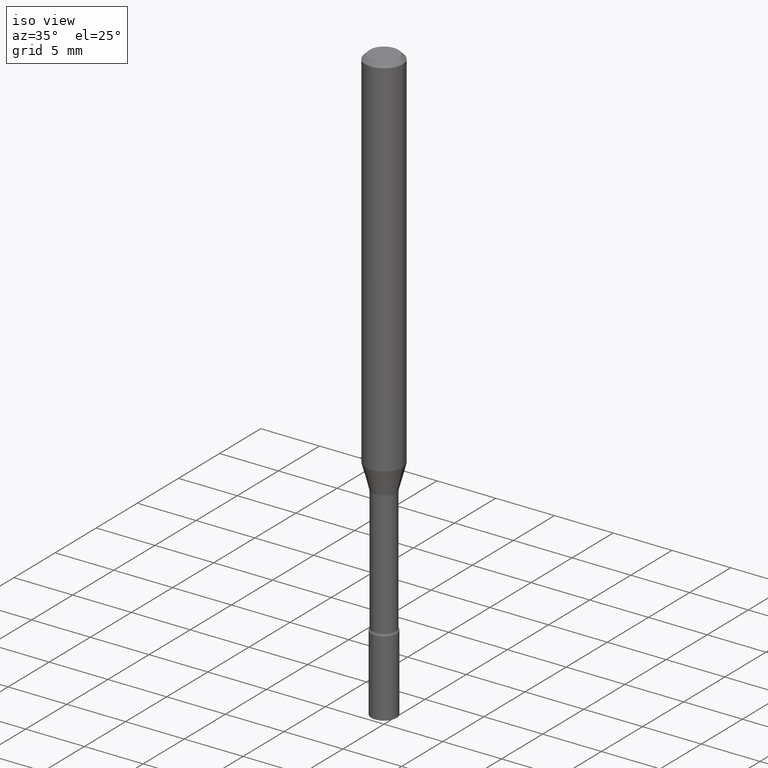
[diagram: clean part render]
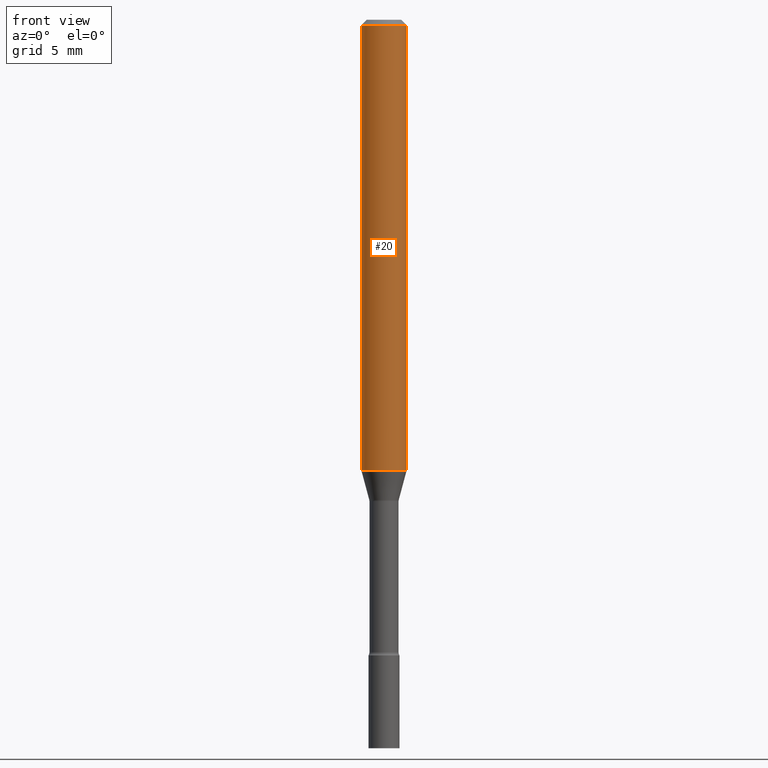
[diagram: tour spotlight — one face highlighted and labeled with its STEP entity id]
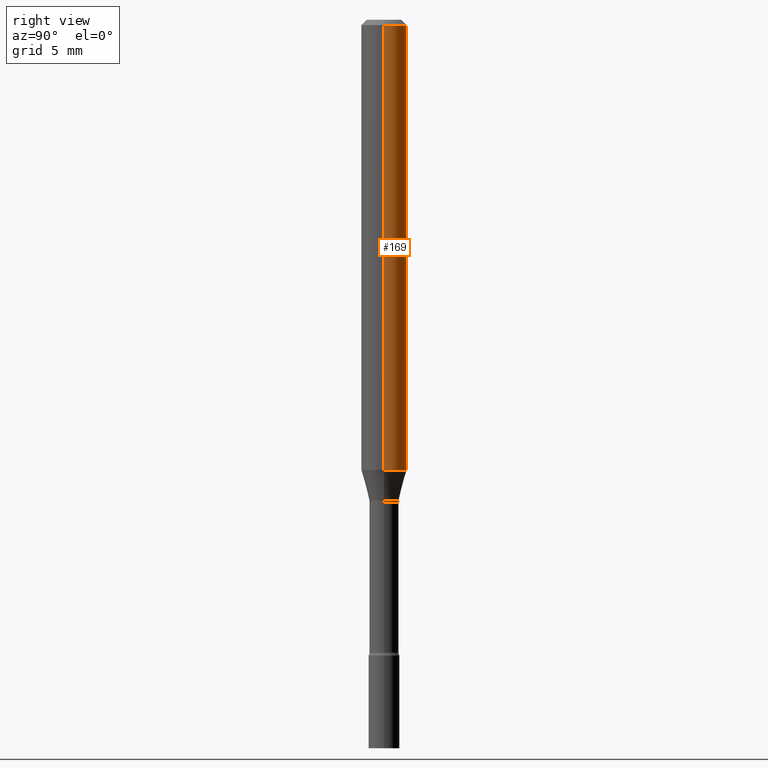
[diagram: tour spotlight — one face highlighted and labeled with its STEP entity id]
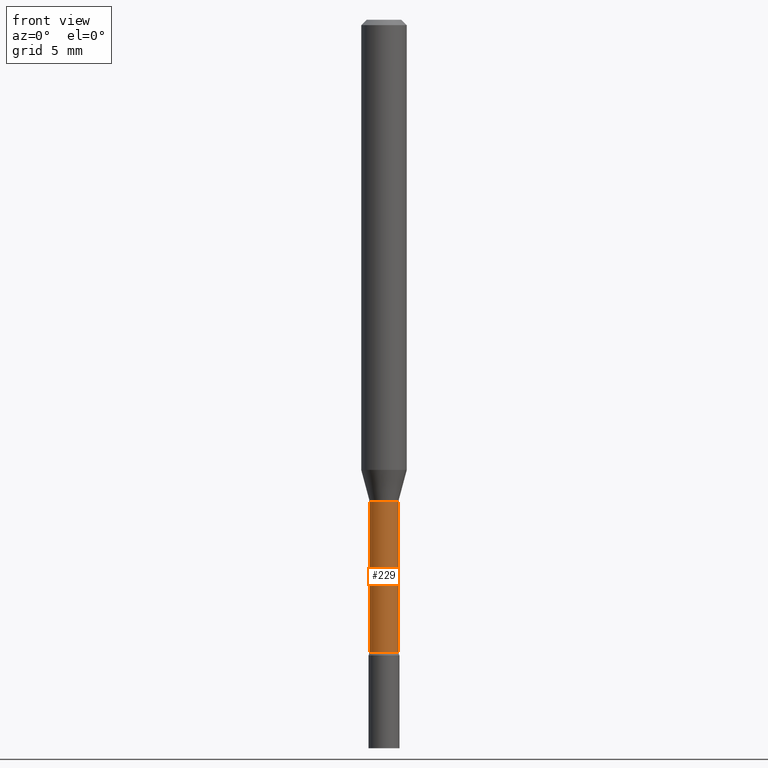
[diagram: tour spotlight — one face highlighted and labeled with its STEP entity id]
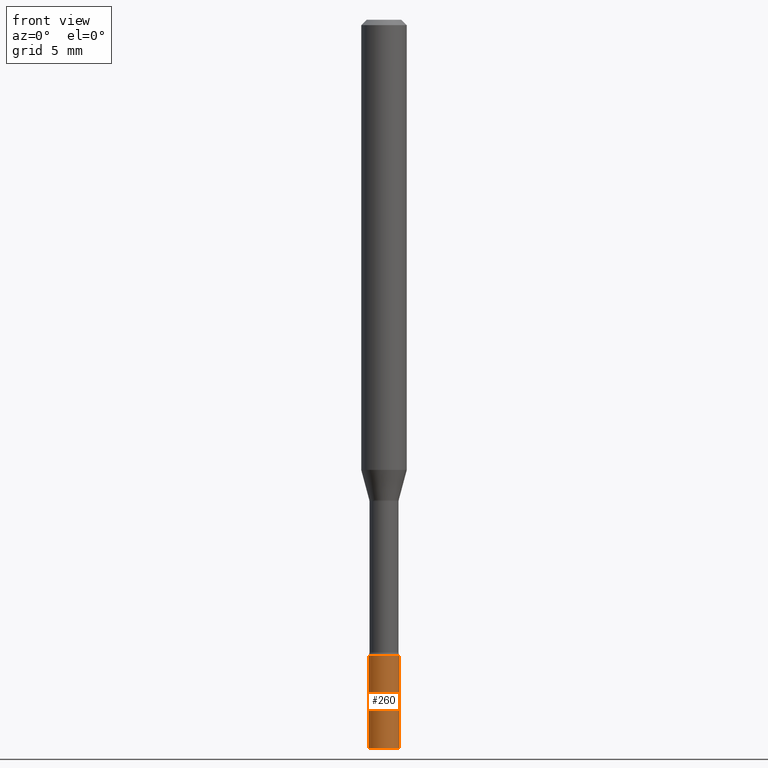
[diagram: tour spotlight — one face highlighted and labeled with its STEP entity id]
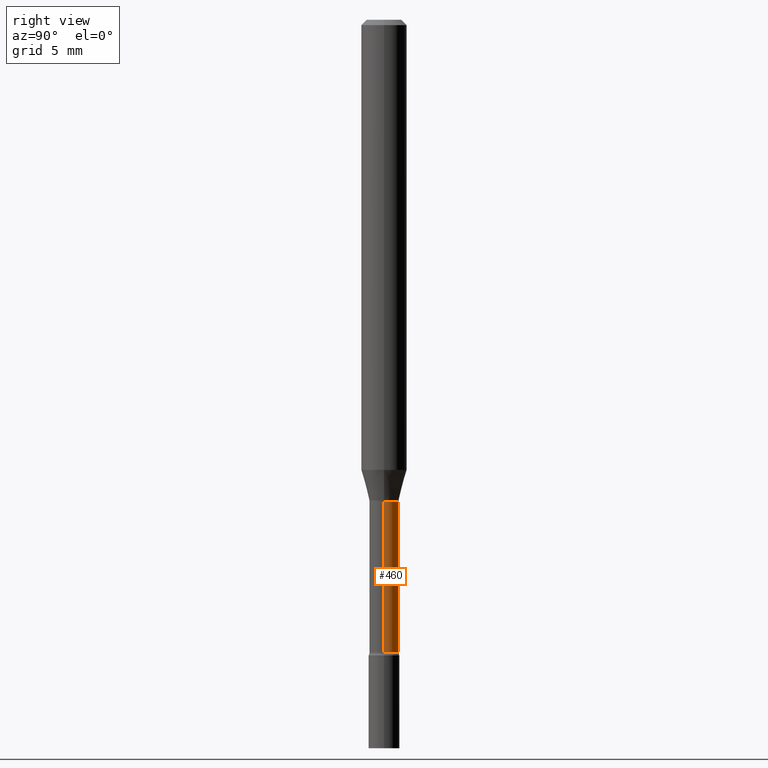
[diagram: tour spotlight — one face highlighted and labeled with its STEP entity id]
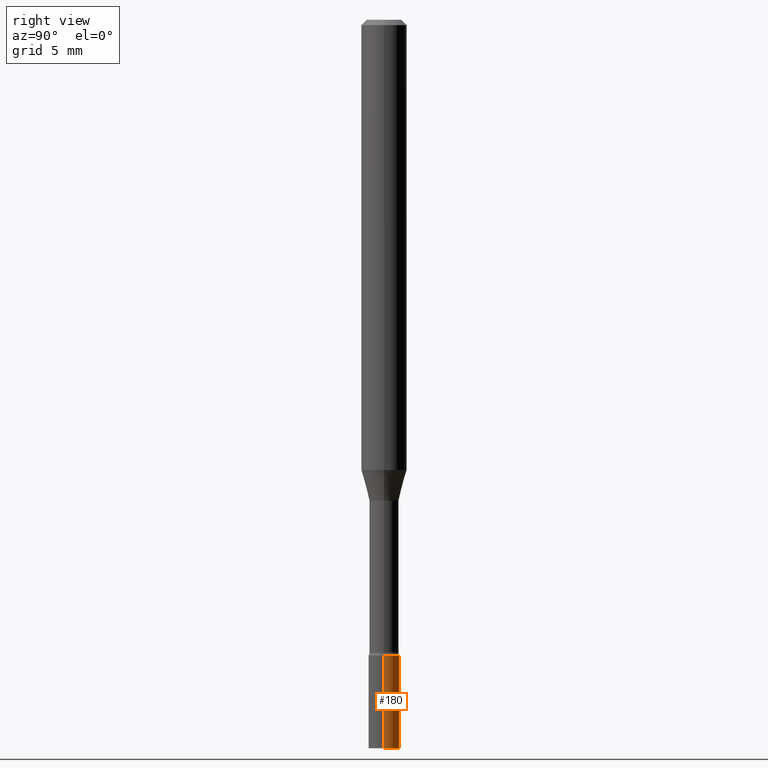
[diagram: tour spotlight — one face highlighted and labeled with its STEP entity id]
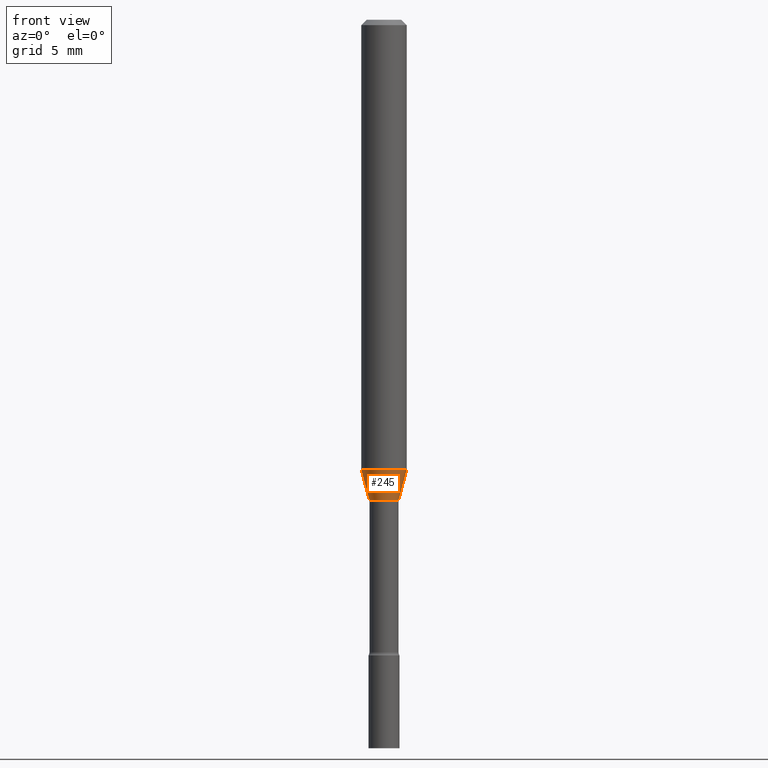
[diagram: tour spotlight — one face highlighted and labeled with its STEP entity id]
A machine part: a face-by-face anatomy tour. The part has 18 B-rep faces; the first image is the clean iso view, then the 7 largest visible faces are spotlighted one at a time (largest first), each with its STEP entity span.

Face 1 — front view, entity #20. In plain terms, the highlighted cylindrical surface (edge-blend (fillet) strip) has radius 1.5875 mm, axis along (-0, 0, 1).
Definition (entity closure, byte-faithful):
#20 = ADVANCED_FACE ( 'NONE', ( #404 ), #41, .T. ) ;
#21 = AXIS2_PLACEMENT_3D ( 'NONE', #233, #235, #105 ) ;
#24 = VERTEX_POINT ( 'NONE', #42 ) ;
#25 = CARTESIAN_POINT ( 'NONE',  ( -0.06250000000000000000, -3.870830958754951536E-15, -1.235842254289322151 ) ) ;
#37 = EDGE_CURVE ( 'NONE', #355, #64, #127, .T. ) ;
#41 = CYLINDRICAL_SURFACE ( 'NONE', #495, 0.06250000000000000000 ) ;
#42 = CARTESIAN_POINT ( 'NONE',  ( 0.06250000000000000000, -4.888073874380389458E-16, -0.01500000000000003067 ) ) ;
#48 = DIRECTION ( 'NONE',  ( -2.445468806185136877E-29, 3.491481338843145188E-15, 1.000000000000000000 ) ) ;
#64 = VERTEX_POINT ( 'NONE', #412 ) ;
#78 = EDGE_CURVE ( 'NONE', #64, #24, #222, .T. ) ;
#105 = DIRECTION ( 'NONE',  ( 1.000000000000000000, -6.982962677686266711E-15, 0.000000000000000000 ) ) ;
#127 = CIRCLE ( 'NONE', #425, 0.06250000000000000000 ) ;
#134 = DIRECTION ( 'NONE',  ( 1.000000000000000000, -6.982962677686270655E-15, 0.000000000000000000 ) ) ;
#142 = CARTESIAN_POINT ( 'NONE',  ( -0.06250000000000000000, 4.440892098500626162E-16, -3.074334431409316114E-30 ) ) ;
#146 = VECTOR ( 'NONE', #48, 39.37007874015748143 ) ;
#170 = ORIENTED_EDGE ( 'NONE', *, *, #78, .T. ) ;
#179 = EDGE_CURVE ( 'NONE', #355, #314, #220, .T. ) ;
#192 = EDGE_LOOP ( 'NONE', ( #424, #402, #170, #206 ) ) ;
#206 = ORIENTED_EDGE ( 'NONE', *, *, #267, .F. ) ;
#217 = CARTESIAN_POINT ( 'NONE',  ( 0.06250000000000000000, -4.364351673553916694E-16, 3.047610484872459871E-30 ) ) ;
#220 = LINE ( 'NONE', #142, #332 ) ;
#222 = LINE ( 'NONE', #217, #146 ) ;
#233 = CARTESIAN_POINT ( 'NONE',  ( 3.668203209277712094E-31, -5.237222008264728876E-17, -0.01500000000000003067 ) ) ;
#235 = DIRECTION ( 'NONE',  ( -2.445468806185136597E-29, 3.491481338843145583E-15, 1.000000000000000000 ) ) ;
#267 = EDGE_CURVE ( 'NONE', #314, #24, #346, .T. ) ;
#314 = VERTEX_POINT ( 'NONE', #385 ) ;
#332 = VECTOR ( 'NONE', #486, 39.37007874015748143 ) ;
#346 = CIRCLE ( 'NONE', #21, 0.06250000000000000000 ) ;
#355 = VERTEX_POINT ( 'NONE', #25 ) ;
#366 = DIRECTION ( 'NONE',  ( -2.445468806185136597E-29, 3.491481338843145583E-15, 1.000000000000000000 ) ) ;
#385 = CARTESIAN_POINT ( 'NONE',  ( -0.06250000000000000000, -1.739556984493767999E-15, -0.01500000000000003067 ) ) ;
#402 = ORIENTED_EDGE ( 'NONE', *, *, #37, .T. ) ;
#404 = FACE_OUTER_BOUND ( 'NONE', #192, .T. ) ;
#408 = DIRECTION ( 'NONE',  ( 1.000000000000000000, -6.982962677686266711E-15, 4.876176775795935793E-29 ) ) ;
#412 = CARTESIAN_POINT ( 'NONE',  ( 0.06250000000000000000, -4.751355335960405821E-15, -1.235842254289322151 ) ) ;
#424 = ORIENTED_EDGE ( 'NONE', *, *, #179, .F. ) ;
#425 = AXIS2_PLACEMENT_3D ( 'NONE', #484, #491, #134 ) ;
#431 = CARTESIAN_POINT ( 'NONE',  ( 0.000000000000000000, 0.000000000000000000, 0.000000000000000000 ) ) ;
#484 = CARTESIAN_POINT ( 'NONE',  ( 3.022213682230056525E-29, -4.314920168605014152E-15, -1.235842254289322151 ) ) ;
#486 = DIRECTION ( 'NONE',  ( -2.445468806185136877E-29, 3.491481338843145188E-15, 1.000000000000000000 ) ) ;
#491 = DIRECTION ( 'NONE',  ( -2.445468806185136597E-29, 3.491481338843145583E-15, 1.000000000000000000 ) ) ;
#495 = AXIS2_PLACEMENT_3D ( 'NONE', #431, #366, #408 ) ;

Face 2 — right view, entity #169. In plain terms, the highlighted cylindrical surface (edge-blend (fillet) strip) has radius 1.5875 mm, axis along (-0, 0, 1).
Definition (entity closure, byte-faithful):
#1 = DIRECTION ( 'NONE',  ( 1.000000000000000000, -6.982962677686270655E-15, 0.000000000000000000 ) ) ;
#24 = VERTEX_POINT ( 'NONE', #42 ) ;
#25 = CARTESIAN_POINT ( 'NONE',  ( -0.06250000000000000000, -3.870830958754951536E-15, -1.235842254289322151 ) ) ;
#42 = CARTESIAN_POINT ( 'NONE',  ( 0.06250000000000000000, -4.888073874380389458E-16, -0.01500000000000003067 ) ) ;
#48 = DIRECTION ( 'NONE',  ( -2.445468806185136877E-29, 3.491481338843145188E-15, 1.000000000000000000 ) ) ;
#53 = AXIS2_PLACEMENT_3D ( 'NONE', #218, #337, #250 ) ;
#64 = VERTEX_POINT ( 'NONE', #412 ) ;
#78 = EDGE_CURVE ( 'NONE', #64, #24, #222, .T. ) ;
#115 = DIRECTION ( 'NONE',  ( 1.000000000000000000, -6.982962677686266711E-15, 0.000000000000000000 ) ) ;
#118 = EDGE_LOOP ( 'NONE', ( #398, #126, #151, #159 ) ) ;
#126 = ORIENTED_EDGE ( 'NONE', *, *, #179, .T. ) ;
#128 = AXIS2_PLACEMENT_3D ( 'NONE', #359, #470, #115 ) ;
#142 = CARTESIAN_POINT ( 'NONE',  ( -0.06250000000000000000, 4.440892098500626162E-16, -3.074334431409316114E-30 ) ) ;
#146 = VECTOR ( 'NONE', #48, 39.37007874015748143 ) ;
#151 = ORIENTED_EDGE ( 'NONE', *, *, #507, .F. ) ;
#159 = ORIENTED_EDGE ( 'NONE', *, *, #78, .F. ) ;
#169 = ADVANCED_FACE ( 'NONE', ( #489 ), #381, .T. ) ;
#179 = EDGE_CURVE ( 'NONE', #355, #314, #220, .T. ) ;
#191 = CIRCLE ( 'NONE', #512, 0.06250000000000000000 ) ;
#217 = CARTESIAN_POINT ( 'NONE',  ( 0.06250000000000000000, -4.364351673553916694E-16, 3.047610484872459871E-30 ) ) ;
#218 = CARTESIAN_POINT ( 'NONE',  ( 0.000000000000000000, 0.000000000000000000, 0.000000000000000000 ) ) ;
#220 = LINE ( 'NONE', #142, #332 ) ;
#222 = LINE ( 'NONE', #217, #146 ) ;
#231 = EDGE_CURVE ( 'NONE', #64, #355, #191, .T. ) ;
#250 = DIRECTION ( 'NONE',  ( 1.000000000000000000, -6.982962677686266711E-15, 4.876176775795935793E-29 ) ) ;
#259 = CARTESIAN_POINT ( 'NONE',  ( 3.022213682230056525E-29, -4.314920168605014152E-15, -1.235842254289322151 ) ) ;
#314 = VERTEX_POINT ( 'NONE', #385 ) ;
#332 = VECTOR ( 'NONE', #486, 39.37007874015748143 ) ;
#337 = DIRECTION ( 'NONE',  ( -2.445468806185136597E-29, 3.491481338843145583E-15, 1.000000000000000000 ) ) ;
#339 = CIRCLE ( 'NONE', #128, 0.06250000000000000000 ) ;
#355 = VERTEX_POINT ( 'NONE', #25 ) ;
#359 = CARTESIAN_POINT ( 'NONE',  ( 3.668203209277712094E-31, -5.237222008264728876E-17, -0.01500000000000003067 ) ) ;
#381 = CYLINDRICAL_SURFACE ( 'NONE', #53, 0.06250000000000000000 ) ;
#385 = CARTESIAN_POINT ( 'NONE',  ( -0.06250000000000000000, -1.739556984493767999E-15, -0.01500000000000003067 ) ) ;
#398 = ORIENTED_EDGE ( 'NONE', *, *, #231, .T. ) ;
#412 = CARTESIAN_POINT ( 'NONE',  ( 0.06250000000000000000, -4.751355335960405821E-15, -1.235842254289322151 ) ) ;
#416 = DIRECTION ( 'NONE',  ( -2.445468806185136597E-29, 3.491481338843145583E-15, 1.000000000000000000 ) ) ;
#470 = DIRECTION ( 'NONE',  ( -2.445468806185136597E-29, 3.491481338843145583E-15, 1.000000000000000000 ) ) ;
#486 = DIRECTION ( 'NONE',  ( -2.445468806185136877E-29, 3.491481338843145188E-15, 1.000000000000000000 ) ) ;
#489 = FACE_OUTER_BOUND ( 'NONE', #118, .T. ) ;
#507 = EDGE_CURVE ( 'NONE', #24, #314, #339, .T. ) ;
#512 = AXIS2_PLACEMENT_3D ( 'NONE', #259, #416, #1 ) ;

Face 3 — front view, entity #229. In plain terms, the highlighted cylindrical surface (edge-blend (fillet) strip) has radius 1.0147 mm, axis along (-0, 0, 1).
Definition (entity closure, byte-faithful):
#16 = LINE ( 'NONE', #276, #138 ) ;
#33 = VERTEX_POINT ( 'NONE', #72 ) ;
#44 = DIRECTION ( 'NONE',  ( -2.445468806185136597E-29, 3.491481338843145583E-15, 1.000000000000000000 ) ) ;
#68 = VERTEX_POINT ( 'NONE', #296 ) ;
#72 = CARTESIAN_POINT ( 'NONE',  ( -0.03995000000000005491, -5.785108039938417774E-15, -1.736633549139569688 ) ) ;
#88 = CYLINDRICAL_SURFACE ( 'NONE', #227, 0.03995000000000002716 ) ;
#110 = ORIENTED_EDGE ( 'NONE', *, *, #514, .F. ) ;
#113 = DIRECTION ( 'NONE',  ( -2.445468806185136597E-29, 3.491481338843145583E-15, 1.000000000000000000 ) ) ;
#117 = CARTESIAN_POINT ( 'NONE',  ( 4.246883172195400307E-29, -6.063423629229748682E-15, -1.736633549139569688 ) ) ;
#138 = VECTOR ( 'NONE', #309, 39.37007874015748143 ) ;
#141 = VECTOR ( 'NONE', #436, 39.37007874015748143 ) ;
#168 = DIRECTION ( 'NONE',  ( 1.000000000000000000, -6.982962677686276966E-15, 0.000000000000000000 ) ) ;
#184 = CARTESIAN_POINT ( 'NONE',  ( 0.000000000000000000, 0.000000000000000000, 0.000000000000000000 ) ) ;
#185 = CIRCLE ( 'NONE', #479, 0.03994999999999999246 ) ;
#204 = ORIENTED_EDGE ( 'NONE', *, *, #252, .T. ) ;
#227 = AXIS2_PLACEMENT_3D ( 'NONE', #184, #44, #302 ) ;
#229 = ADVANCED_FACE ( 'NONE', ( #442 ), #88, .T. ) ;
#240 = CARTESIAN_POINT ( 'NONE',  ( -0.03995000000000002716, 2.838618229361602172E-16, -1.965114568556836001E-30 ) ) ;
#243 = DIRECTION ( 'NONE',  ( -2.445468806185136597E-29, 3.491481338843145583E-15, 1.000000000000000000 ) ) ;
#252 = EDGE_CURVE ( 'NONE', #68, #317, #16, .T. ) ;
#276 = CARTESIAN_POINT ( 'NONE',  ( 0.03995000000000002716, -2.789693589735665255E-16, 1.948032621930477518E-30 ) ) ;
#281 = CARTESIAN_POINT ( 'NONE',  ( -0.03994999999999999246, -5.055675142104229106E-15, -1.321974787463811252 ) ) ;
#286 = LINE ( 'NONE', #240, #141 ) ;
#296 = CARTESIAN_POINT ( 'NONE',  ( 0.03995000000000005491, -6.342392988203315207E-15, -1.736633549139569688 ) ) ;
#302 = DIRECTION ( 'NONE',  ( 1.000000000000000000, -6.982962677686265922E-15, 4.876176775795935232E-29 ) ) ;
#309 = DIRECTION ( 'NONE',  ( -2.445468806185136877E-29, 3.491481338843145188E-15, 1.000000000000000000 ) ) ;
#317 = VERTEX_POINT ( 'NONE', #500 ) ;
#343 = ORIENTED_EDGE ( 'NONE', *, *, #413, .T. ) ;
#368 = EDGE_CURVE ( 'NONE', #429, #317, #185, .T. ) ;
#401 = DIRECTION ( 'NONE',  ( 1.000000000000000000, -6.982962677686265922E-15, 0.000000000000000000 ) ) ;
#413 = EDGE_CURVE ( 'NONE', #33, #68, #462, .T. ) ;
#429 = VERTEX_POINT ( 'NONE', #281 ) ;
#435 = EDGE_LOOP ( 'NONE', ( #110, #343, #204, #503 ) ) ;
#436 = DIRECTION ( 'NONE',  ( -2.445468806185136877E-29, 3.491481338843145188E-15, 1.000000000000000000 ) ) ;
#442 = FACE_OUTER_BOUND ( 'NONE', #435, .T. ) ;
#449 = AXIS2_PLACEMENT_3D ( 'NONE', #117, #243, #401 ) ;
#462 = CIRCLE ( 'NONE', #449, 0.03995000000000005491 ) ;
#463 = CARTESIAN_POINT ( 'NONE',  ( 3.232848105305976376E-29, -4.615650300851030950E-15, -1.321974787463811252 ) ) ;
#479 = AXIS2_PLACEMENT_3D ( 'NONE', #463, #113, #168 ) ;
#500 = CARTESIAN_POINT ( 'NONE',  ( 0.03994999999999999246, -4.894619659824597475E-15, -1.321974787463811252 ) ) ;
#503 = ORIENTED_EDGE ( 'NONE', *, *, #368, .F. ) ;
#514 = EDGE_CURVE ( 'NONE', #33, #429, #286, .T. ) ;

Face 4 — front view, entity #260. In plain terms, the highlighted cylindrical surface (edge-blend (fillet) strip) has radius 1.0795 mm, axis along (-0, 0, 1).
Definition (entity closure, byte-faithful):
#52 = DIRECTION ( 'NONE',  ( -2.445468806185136597E-29, 3.491481338843145583E-15, 1.000000000000000000 ) ) ;
#59 = CYLINDRICAL_SURFACE ( 'NONE', #193, 0.04249999999999999611 ) ;
#63 = LINE ( 'NONE', #457, #291 ) ;
#92 = LINE ( 'NONE', #257, #448 ) ;
#95 = CARTESIAN_POINT ( 'NONE',  ( 0.04249999999999999611, -7.279738591487957027E-15, -2.000000000000000000 ) ) ;
#97 = EDGE_CURVE ( 'NONE', #369, #199, #163, .T. ) ;
#101 = AXIS2_PLACEMENT_3D ( 'NONE', #418, #52, #375 ) ;
#104 = EDGE_CURVE ( 'NONE', #199, #321, #92, .T. ) ;
#116 = ORIENTED_EDGE ( 'NONE', *, *, #289, .F. ) ;
#119 = AXIS2_PLACEMENT_3D ( 'NONE', #444, #341, #178 ) ;
#136 = EDGE_CURVE ( 'NONE', #352, #321, #207, .T. ) ;
#148 = DIRECTION ( 'NONE',  ( -2.445468806185136597E-29, 3.491481338843145583E-15, 1.000000000000000000 ) ) ;
#162 = ORIENTED_EDGE ( 'NONE', *, *, #104, .T. ) ;
#163 = CIRCLE ( 'NONE', #101, 0.04249999999999999611 ) ;
#178 = DIRECTION ( 'NONE',  ( 1.000000000000000000, -6.982962677686276177E-15, 0.000000000000000000 ) ) ;
#193 = AXIS2_PLACEMENT_3D ( 'NONE', #265, #148, #394 ) ;
#199 = VERTEX_POINT ( 'NONE', #95 ) ;
#207 = CIRCLE ( 'NONE', #119, 0.04249999999999999611 ) ;
#248 = ORIENTED_EDGE ( 'NONE', *, *, #136, .F. ) ;
#257 = CARTESIAN_POINT ( 'NONE',  ( 0.04249999999999999611, -2.967759138016663549E-16, 2.072375129713272502E-30 ) ) ;
#260 = ADVANCED_FACE ( 'NONE', ( #420 ), #59, .T. ) ;
#265 = CARTESIAN_POINT ( 'NONE',  ( 0.000000000000000000, 0.000000000000000000, 0.000000000000000000 ) ) ;
#284 = CARTESIAN_POINT ( 'NONE',  ( -0.04249999999999999611, -6.235818144285747159E-15, -2.000000000000000000 ) ) ;
#289 = EDGE_CURVE ( 'NONE', #369, #352, #63, .T. ) ;
#291 = VECTOR ( 'NONE', #347, 39.37007874015748143 ) ;
#303 = CARTESIAN_POINT ( 'NONE',  ( 0.04249999999999999611, -6.389410850082955497E-15, -1.745000000000000107 ) ) ;
#321 = VERTEX_POINT ( 'NONE', #303 ) ;
#326 = EDGE_LOOP ( 'NONE', ( #116, #386, #162, #248 ) ) ;
#341 = DIRECTION ( 'NONE',  ( -2.445468806185136597E-29, 3.491481338843145583E-15, 1.000000000000000000 ) ) ;
#347 = DIRECTION ( 'NONE',  ( -2.445468806185136877E-29, 3.491481338843145188E-15, 1.000000000000000000 ) ) ;
#352 = VERTEX_POINT ( 'NONE', #427 ) ;
#369 = VERTEX_POINT ( 'NONE', #284 ) ;
#375 = DIRECTION ( 'NONE',  ( 1.000000000000000000, -6.982962677686276177E-15, 0.000000000000000000 ) ) ;
#386 = ORIENTED_EDGE ( 'NONE', *, *, #97, .T. ) ;
#394 = DIRECTION ( 'NONE',  ( 1.000000000000000000, -6.982962677686267499E-15, 4.876176775795935793E-29 ) ) ;
#418 = CARTESIAN_POINT ( 'NONE',  ( 4.890937612370273194E-29, -6.982962677686291165E-15, -2.000000000000000000 ) ) ;
#420 = FACE_OUTER_BOUND ( 'NONE', #326, .T. ) ;
#427 = CARTESIAN_POINT ( 'NONE',  ( -0.04249999999999999611, -6.235818144285747159E-15, -1.745000000000000107 ) ) ;
#444 = CARTESIAN_POINT ( 'NONE',  ( 4.267343066793063832E-29, -6.092634936281288846E-15, -1.745000000000000107 ) ) ;
#448 = VECTOR ( 'NONE', #451, 39.37007874015748143 ) ;
#451 = DIRECTION ( 'NONE',  ( -2.445468806185136877E-29, 3.491481338843145188E-15, 1.000000000000000000 ) ) ;
#457 = CARTESIAN_POINT ( 'NONE',  ( -0.04249999999999999611, 3.019806626980425514E-16, -2.090547413358334859E-30 ) ) ;

Face 5 — right view, entity #460. In plain terms, the highlighted cylindrical surface (edge-blend (fillet) strip) has radius 1.0147 mm, axis along (-0, 0, 1).
Definition (entity closure, byte-faithful):
#4 = EDGE_CURVE ( 'NONE', #317, #429, #372, .T. ) ;
#16 = LINE ( 'NONE', #276, #138 ) ;
#33 = VERTEX_POINT ( 'NONE', #72 ) ;
#68 = VERTEX_POINT ( 'NONE', #296 ) ;
#72 = CARTESIAN_POINT ( 'NONE',  ( -0.03995000000000005491, -5.785108039938417774E-15, -1.736633549139569688 ) ) ;
#87 = CARTESIAN_POINT ( 'NONE',  ( 3.232848105305976376E-29, -4.615650300851030950E-15, -1.321974787463811252 ) ) ;
#124 = DIRECTION ( 'NONE',  ( 1.000000000000000000, -6.982962677686276966E-15, 0.000000000000000000 ) ) ;
#138 = VECTOR ( 'NONE', #309, 39.37007874015748143 ) ;
#141 = VECTOR ( 'NONE', #436, 39.37007874015748143 ) ;
#154 = AXIS2_PLACEMENT_3D ( 'NONE', #387, #225, #198 ) ;
#172 = DIRECTION ( 'NONE',  ( -2.445468806185136597E-29, 3.491481338843145583E-15, 1.000000000000000000 ) ) ;
#195 = ORIENTED_EDGE ( 'NONE', *, *, #278, .T. ) ;
#198 = DIRECTION ( 'NONE',  ( 1.000000000000000000, -6.982962677686265922E-15, 0.000000000000000000 ) ) ;
#203 = DIRECTION ( 'NONE',  ( 1.000000000000000000, -6.982962677686265922E-15, 4.876176775795935232E-29 ) ) ;
#225 = DIRECTION ( 'NONE',  ( -2.445468806185136597E-29, 3.491481338843145583E-15, 1.000000000000000000 ) ) ;
#226 = EDGE_LOOP ( 'NONE', ( #195, #312, #497, #348 ) ) ;
#240 = CARTESIAN_POINT ( 'NONE',  ( -0.03995000000000002716, 2.838618229361602172E-16, -1.965114568556836001E-30 ) ) ;
#252 = EDGE_CURVE ( 'NONE', #68, #317, #16, .T. ) ;
#263 = AXIS2_PLACEMENT_3D ( 'NONE', #87, #172, #124 ) ;
#276 = CARTESIAN_POINT ( 'NONE',  ( 0.03995000000000002716, -2.789693589735665255E-16, 1.948032621930477518E-30 ) ) ;
#278 = EDGE_CURVE ( 'NONE', #68, #33, #364, .T. ) ;
#281 = CARTESIAN_POINT ( 'NONE',  ( -0.03994999999999999246, -5.055675142104229106E-15, -1.321974787463811252 ) ) ;
#286 = LINE ( 'NONE', #240, #141 ) ;
#296 = CARTESIAN_POINT ( 'NONE',  ( 0.03995000000000005491, -6.342392988203315207E-15, -1.736633549139569688 ) ) ;
#309 = DIRECTION ( 'NONE',  ( -2.445468806185136877E-29, 3.491481338843145188E-15, 1.000000000000000000 ) ) ;
#312 = ORIENTED_EDGE ( 'NONE', *, *, #514, .T. ) ;
#317 = VERTEX_POINT ( 'NONE', #500 ) ;
#327 = DIRECTION ( 'NONE',  ( -2.445468806185136597E-29, 3.491481338843145583E-15, 1.000000000000000000 ) ) ;
#348 = ORIENTED_EDGE ( 'NONE', *, *, #252, .F. ) ;
#362 = CYLINDRICAL_SURFACE ( 'NONE', #441, 0.03995000000000002716 ) ;
#364 = CIRCLE ( 'NONE', #154, 0.03995000000000005491 ) ;
#372 = CIRCLE ( 'NONE', #263, 0.03994999999999999246 ) ;
#387 = CARTESIAN_POINT ( 'NONE',  ( 4.246883172195400307E-29, -6.063423629229748682E-15, -1.736633549139569688 ) ) ;
#403 = FACE_OUTER_BOUND ( 'NONE', #226, .T. ) ;
#429 = VERTEX_POINT ( 'NONE', #281 ) ;
#436 = DIRECTION ( 'NONE',  ( -2.445468806185136877E-29, 3.491481338843145188E-15, 1.000000000000000000 ) ) ;
#441 = AXIS2_PLACEMENT_3D ( 'NONE', #511, #327, #203 ) ;
#460 = ADVANCED_FACE ( 'NONE', ( #403 ), #362, .T. ) ;
#497 = ORIENTED_EDGE ( 'NONE', *, *, #4, .F. ) ;
#500 = CARTESIAN_POINT ( 'NONE',  ( 0.03994999999999999246, -4.894619659824597475E-15, -1.321974787463811252 ) ) ;
#511 = CARTESIAN_POINT ( 'NONE',  ( 0.000000000000000000, 0.000000000000000000, 0.000000000000000000 ) ) ;
#514 = EDGE_CURVE ( 'NONE', #33, #429, #286, .T. ) ;

Face 6 — right view, entity #180. In plain terms, the highlighted cylindrical surface (edge-blend (fillet) strip) has radius 1.0795 mm, axis along (-0, 0, 1).
Definition (entity closure, byte-faithful):
#3 = CIRCLE ( 'NONE', #505, 0.04249999999999999611 ) ;
#10 = DIRECTION ( 'NONE',  ( 1.000000000000000000, -6.982962677686267499E-15, 4.876176775795935793E-29 ) ) ;
#63 = LINE ( 'NONE', #457, #291 ) ;
#75 = CARTESIAN_POINT ( 'NONE',  ( 4.267343066793063832E-29, -6.092634936281288846E-15, -1.745000000000000107 ) ) ;
#92 = LINE ( 'NONE', #257, #448 ) ;
#95 = CARTESIAN_POINT ( 'NONE',  ( 0.04249999999999999611, -7.279738591487957027E-15, -2.000000000000000000 ) ) ;
#104 = EDGE_CURVE ( 'NONE', #199, #321, #92, .T. ) ;
#108 = ORIENTED_EDGE ( 'NONE', *, *, #104, .F. ) ;
#140 = FACE_OUTER_BOUND ( 'NONE', #228, .T. ) ;
#158 = DIRECTION ( 'NONE',  ( 1.000000000000000000, -6.982962677686276177E-15, 0.000000000000000000 ) ) ;
#180 = ADVANCED_FACE ( 'NONE', ( #140 ), #342, .T. ) ;
#199 = VERTEX_POINT ( 'NONE', #95 ) ;
#228 = EDGE_LOOP ( 'NONE', ( #329, #506, #319, #108 ) ) ;
#257 = CARTESIAN_POINT ( 'NONE',  ( 0.04249999999999999611, -2.967759138016663549E-16, 2.072375129713272502E-30 ) ) ;
#279 = DIRECTION ( 'NONE',  ( -2.445468806185136597E-29, 3.491481338843145583E-15, 1.000000000000000000 ) ) ;
#284 = CARTESIAN_POINT ( 'NONE',  ( -0.04249999999999999611, -6.235818144285747159E-15, -2.000000000000000000 ) ) ;
#289 = EDGE_CURVE ( 'NONE', #369, #352, #63, .T. ) ;
#291 = VECTOR ( 'NONE', #347, 39.37007874015748143 ) ;
#293 = DIRECTION ( 'NONE',  ( -2.445468806185136597E-29, 3.491481338843145583E-15, 1.000000000000000000 ) ) ;
#298 = CIRCLE ( 'NONE', #354, 0.04249999999999999611 ) ;
#303 = CARTESIAN_POINT ( 'NONE',  ( 0.04249999999999999611, -6.389410850082955497E-15, -1.745000000000000107 ) ) ;
#305 = AXIS2_PLACEMENT_3D ( 'NONE', #481, #293, #10 ) ;
#316 = DIRECTION ( 'NONE',  ( 1.000000000000000000, -6.982962677686276177E-15, 0.000000000000000000 ) ) ;
#319 = ORIENTED_EDGE ( 'NONE', *, *, #499, .F. ) ;
#321 = VERTEX_POINT ( 'NONE', #303 ) ;
#324 = CARTESIAN_POINT ( 'NONE',  ( 4.890937612370273194E-29, -6.982962677686291165E-15, -2.000000000000000000 ) ) ;
#329 = ORIENTED_EDGE ( 'NONE', *, *, #498, .T. ) ;
#342 = CYLINDRICAL_SURFACE ( 'NONE', #305, 0.04249999999999999611 ) ;
#347 = DIRECTION ( 'NONE',  ( -2.445468806185136877E-29, 3.491481338843145188E-15, 1.000000000000000000 ) ) ;
#352 = VERTEX_POINT ( 'NONE', #427 ) ;
#354 = AXIS2_PLACEMENT_3D ( 'NONE', #75, #279, #316 ) ;
#369 = VERTEX_POINT ( 'NONE', #284 ) ;
#427 = CARTESIAN_POINT ( 'NONE',  ( -0.04249999999999999611, -6.235818144285747159E-15, -1.745000000000000107 ) ) ;
#432 = DIRECTION ( 'NONE',  ( -2.445468806185136597E-29, 3.491481338843145583E-15, 1.000000000000000000 ) ) ;
#448 = VECTOR ( 'NONE', #451, 39.37007874015748143 ) ;
#451 = DIRECTION ( 'NONE',  ( -2.445468806185136877E-29, 3.491481338843145188E-15, 1.000000000000000000 ) ) ;
#457 = CARTESIAN_POINT ( 'NONE',  ( -0.04249999999999999611, 3.019806626980425514E-16, -2.090547413358334859E-30 ) ) ;
#481 = CARTESIAN_POINT ( 'NONE',  ( 0.000000000000000000, 0.000000000000000000, 0.000000000000000000 ) ) ;
#498 = EDGE_CURVE ( 'NONE', #199, #369, #3, .T. ) ;
#499 = EDGE_CURVE ( 'NONE', #321, #352, #298, .T. ) ;
#505 = AXIS2_PLACEMENT_3D ( 'NONE', #324, #432, #158 ) ;
#506 = ORIENTED_EDGE ( 'NONE', *, *, #289, .T. ) ;

Face 7 — front view, entity #245. In plain terms, the highlighted conical surface has half-angle 15 deg.
Definition (entity closure, byte-faithful):
#6 = LINE ( 'NONE', #447, #54 ) ;
#14 = LINE ( 'NONE', #27, #356 ) ;
#19 = AXIS2_PLACEMENT_3D ( 'NONE', #46, #262, #99 ) ;
#25 = CARTESIAN_POINT ( 'NONE',  ( -0.06250000000000000000, -3.870830958754951536E-15, -1.235842254289322151 ) ) ;
#27 = CARTESIAN_POINT ( 'NONE',  ( 0.04046111260566397777, -4.884633812082352936E-15, -1.318092501787273330 ) ) ;
#37 = EDGE_CURVE ( 'NONE', #355, #64, #127, .T. ) ;
#46 = CARTESIAN_POINT ( 'NONE',  ( 3.223354096787303073E-29, -4.602095372859339575E-15, -1.318092501787273330 ) ) ;
#54 = VECTOR ( 'NONE', #186, 39.37007874015747433 ) ;
#64 = VERTEX_POINT ( 'NONE', #412 ) ;
#81 = EDGE_CURVE ( 'NONE', #518, #494, #504, .T. ) ;
#99 = DIRECTION ( 'NONE',  ( 1.000000000000000000, -6.982962677686276966E-15, 0.000000000000000000 ) ) ;
#103 = EDGE_CURVE ( 'NONE', #518, #355, #6, .T. ) ;
#125 = CARTESIAN_POINT ( 'NONE',  ( -0.04046111260566397777, -4.092716417593515738E-15, -1.318092501787273330 ) ) ;
#127 = CIRCLE ( 'NONE', #425, 0.06250000000000000000 ) ;
#134 = DIRECTION ( 'NONE',  ( 1.000000000000000000, -6.982962677686270655E-15, 0.000000000000000000 ) ) ;
#153 = ORIENTED_EDGE ( 'NONE', *, *, #81, .T. ) ;
#186 = DIRECTION ( 'NONE',  ( -0.2588190451025214611, 5.211531920934551042E-15, 0.9659258262890682012 ) ) ;
#190 = DIRECTION ( 'NONE',  ( -2.445468806185136597E-29, 3.491481338843145583E-15, 1.000000000000000000 ) ) ;
#197 = EDGE_LOOP ( 'NONE', ( #202, #153, #285, #472 ) ) ;
#201 = CARTESIAN_POINT ( 'NONE',  ( 0.04046111260566397777, -4.884633812082352936E-15, -1.318092501787273330 ) ) ;
#202 = ORIENTED_EDGE ( 'NONE', *, *, #103, .F. ) ;
#245 = ADVANCED_FACE ( 'NONE', ( #264 ), #272, .T. ) ;
#262 = DIRECTION ( 'NONE',  ( -2.445468806185136597E-29, 3.491481338843145583E-15, 1.000000000000000000 ) ) ;
#264 = FACE_OUTER_BOUND ( 'NONE', #197, .T. ) ;
#268 = CARTESIAN_POINT ( 'NONE',  ( 3.223354096787303073E-29, -4.602095372859339575E-15, -1.318092501787273330 ) ) ;
#269 = EDGE_CURVE ( 'NONE', #494, #64, #14, .T. ) ;
#272 = CONICAL_SURFACE ( 'NONE', #338, 0.04046111260566397777, 0.2617993877991501295 ) ;
#285 = ORIENTED_EDGE ( 'NONE', *, *, #269, .T. ) ;
#338 = AXIS2_PLACEMENT_3D ( 'NONE', #268, #190, #496 ) ;
#355 = VERTEX_POINT ( 'NONE', #25 ) ;
#356 = VECTOR ( 'NONE', #389, 39.37007874015747433 ) ;
#389 = DIRECTION ( 'NONE',  ( 0.2588190451025214611, 1.565188264969621573E-15, 0.9659258262890682012 ) ) ;
#412 = CARTESIAN_POINT ( 'NONE',  ( 0.06250000000000000000, -4.751355335960405821E-15, -1.235842254289322151 ) ) ;
#425 = AXIS2_PLACEMENT_3D ( 'NONE', #484, #491, #134 ) ;
#447 = CARTESIAN_POINT ( 'NONE',  ( -0.04046111260566397777, -4.314601876432080730E-15, -1.318092501787273330 ) ) ;
#472 = ORIENTED_EDGE ( 'NONE', *, *, #37, .F. ) ;
#484 = CARTESIAN_POINT ( 'NONE',  ( 3.022213682230056525E-29, -4.314920168605014152E-15, -1.235842254289322151 ) ) ;
#491 = DIRECTION ( 'NONE',  ( -2.445468806185136597E-29, 3.491481338843145583E-15, 1.000000000000000000 ) ) ;
#494 = VERTEX_POINT ( 'NONE', #201 ) ;
#496 = DIRECTION ( 'NONE',  ( 1.000000000000000000, -6.982962677686276966E-15, 0.000000000000000000 ) ) ;
#504 = CIRCLE ( 'NONE', #19, 0.04046111260566397777 ) ;
#518 = VERTEX_POINT ( 'NONE', #125 ) ;